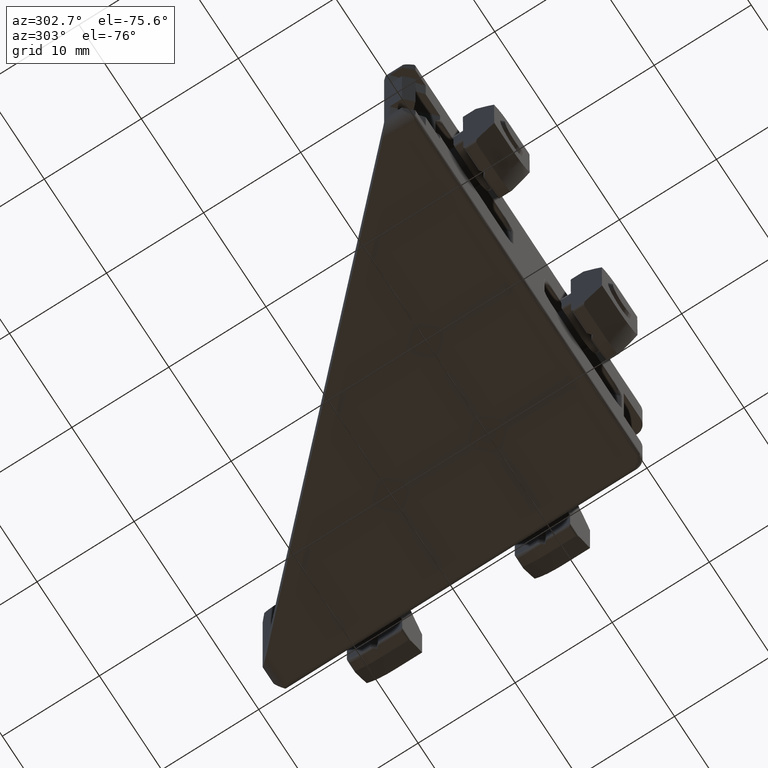
[diagram: clean part render]
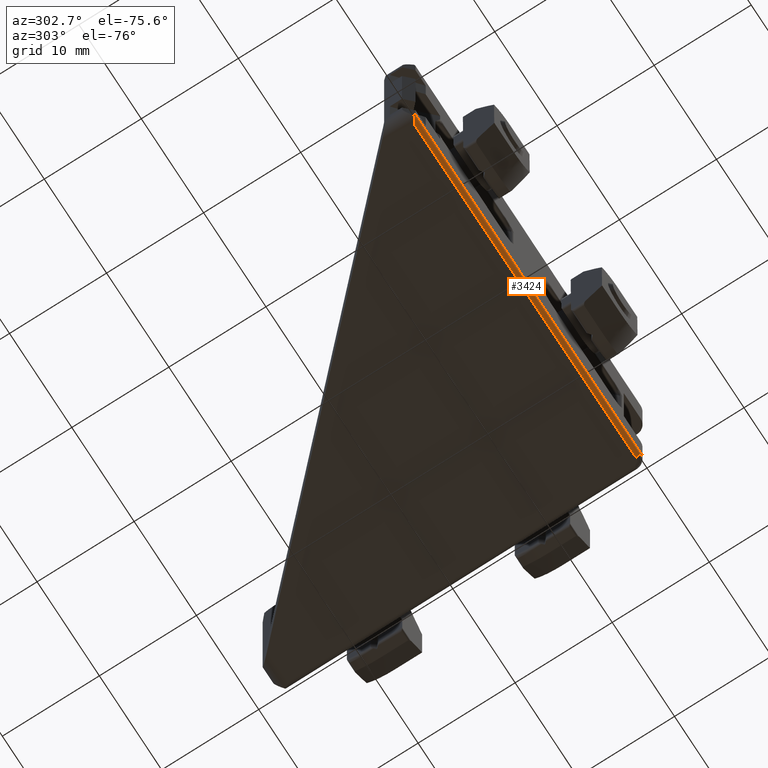
[diagram: same view with one face highlighted and labeled with its STEP entity id]
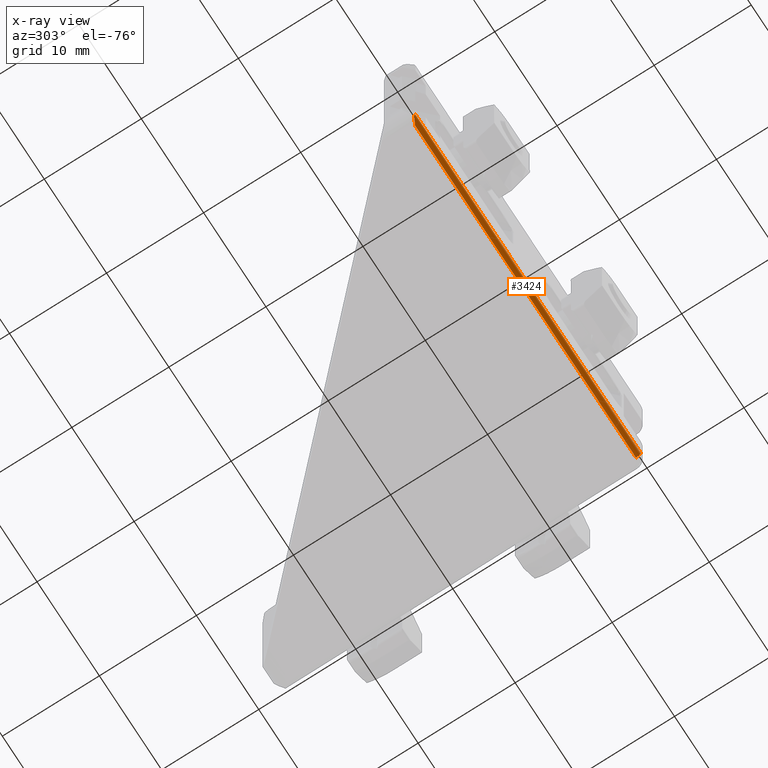
[diagram: x-ray of the same camera — body ghosted, the highlighted face saturated]
A machine part, auxiliary view. The second image highlights one B-rep face of the part: STEP entity #3424.
The next image is the same camera in x-ray: the body ghosted, the highlighted face saturated — about 0% of this face is hidden behind the body in this view.
In plain terms, the highlighted cylindrical surface (edge-blend (fillet) strip) has radius 0.5 mm, axis along (-0.9999, -0, -0.0123).
Its self-contained STEP definition (entity closure, byte-faithful):
#194=LINE($,#5051,#482);
#314=LINE($,#5480,#602);
#482=VECTOR($,#3935,36.1542254089212);
#602=VECTOR($,#4161,35.4903622708443);
#772=CYLINDRICAL_SURFACE($,#3696,0.5);
#881=B_SPLINE_CURVE_WITH_KNOTS($,3,(#5783,#5784,#5785,#5786,#5787,#5788),
 .UNSPECIFIED.,.F.,.F.,(4,2,4),(0.,0.0713896249669128,0.0846927131762061),
 .UNSPECIFIED.);
#985=FACE_OUTER_BOUND($,#1185,.T.);
#1185=EDGE_LOOP($,(#2787,#2788,#2789,#2790,#2791));
#1338=CIRCLE($,#3697,0.500000000000001);
#1420=ELLIPSE($,#3584,0.707160639307375,0.499999999989494);
#1505=VERTEX_POINT($,#5048);
#1506=VERTEX_POINT($,#5050);
#1588=VERTEX_POINT($,#5328);
#1649=VERTEX_POINT($,#5472);
#1650=VERTEX_POINT($,#5479);
#1826=EDGE_CURVE($,#1505,#1506,#194,.T.);
#1919=EDGE_CURVE($,#1588,#1505,#1420,.T.);
#1994=EDGE_CURVE($,#1649,#1650,#314,.T.);
#2114=EDGE_CURVE($,#1650,#1588,#881,.T.);
#2117=EDGE_CURVE($,#1506,#1649,#1338,.T.);
#2787=ORIENTED_EDGE($,*,*,#2114,.F.);
#2788=ORIENTED_EDGE($,*,*,#1994,.F.);
#2789=ORIENTED_EDGE($,*,*,#2117,.F.);
#2790=ORIENTED_EDGE($,*,*,#1826,.F.);
#2791=ORIENTED_EDGE($,*,*,#1919,.F.);
#3424=ADVANCED_FACE($,(#985),#772,.T.);
#3584=AXIS2_PLACEMENT_3D($,#5330,#4040,#4041);
#3696=AXIS2_PLACEMENT_3D($,#5793,#4403,#4404);
#3697=AXIS2_PLACEMENT_3D($,#5794,#4405,#4406);
#3935=DIRECTION($,(0.999923838878746,2.38117508666448E-015,0.0123416547509368));
#4040=DIRECTION('center_axis',(-0.707106781186776,-0.70710678118632,1.52481704772319E-013));
#4041=DIRECTION('ref_axis',(0.70699908539839,-0.706999085398842,0.0174524064541376));
#4161=DIRECTION($,(-0.999923838878746,-2.37941608389623E-015,-0.0123416547509368));
#4403=DIRECTION('center_axis',(-0.999923838878746,-2.38117508666448E-015,
-0.0123416547509368));
#4404=DIRECTION('ref_axis',(-0.0123416547509368,-2.06534016162399E-032,
0.999923838878746));
#4405=DIRECTION('center_axis',(0.999923838878746,2.16823919686476E-015,
0.0123416547509368));
#4406=DIRECTION('ref_axis',(0.0123416547509368,-3.83652134506109E-031,-0.999923838878746));
#5048=CARTESIAN_POINT('',(-37.151471862576,-8.84708972748171E-014,-8.46476560746753));
#5050=CARTESIAN_POINT('',(-0.999999999999998,-2.38135645344207E-015,-8.01856263968307));
#5051=CARTESIAN_POINT($,(-37.151471862576,-8.84708972748172E-014,-8.46476560746753));
#5328=CARTESIAN_POINT('',(-37.2432057481915,0.0917338856154053,-8.75456975333502));
#5330=CARTESIAN_POINT('Origin',(-37.6514718625572,0.499999999981354,-8.47093690486155));
#5472=CARTESIAN_POINT('',(-0.993829642530085,0.493829642530084,-8.51848648726127));
#5479=CARTESIAN_POINT('',(-36.4814889275901,0.49382964253,-8.9564962853937));
#5480=CARTESIAN_POINT($,(-0.993829642530088,0.493829642530084,-8.51848648726127));
#5783=CARTESIAN_POINT('Ctrl Pts',(-36.4814889275902,0.49382964253,-8.9564962853937));
#5784=CARTESIAN_POINT('Ctrl Pts',(-36.687570920531,0.374848148430498,-8.95757133155576));
#5785=CARTESIAN_POINT('Ctrl Pts',(-36.931337277961,0.235126427320829,-8.90658642710235));
#5786=CARTESIAN_POINT('Ctrl Pts',(-37.1666562369715,0.124777379757571,-8.79637539538829));
#5787=CARTESIAN_POINT('Ctrl Pts',(-37.2048423246536,0.107679220552147,-8.77665102983265));
#5788=CARTESIAN_POINT('Ctrl Pts',(-37.2432057481915,0.0917338856154023,
-8.75456975333503));
#5793=CARTESIAN_POINT('Origin',(0.209868911343648,0.500000000000001,-8.00362971797732));
#5794=CARTESIAN_POINT('Origin',(-0.999999999999999,0.499999999999998,-8.01856263968307));